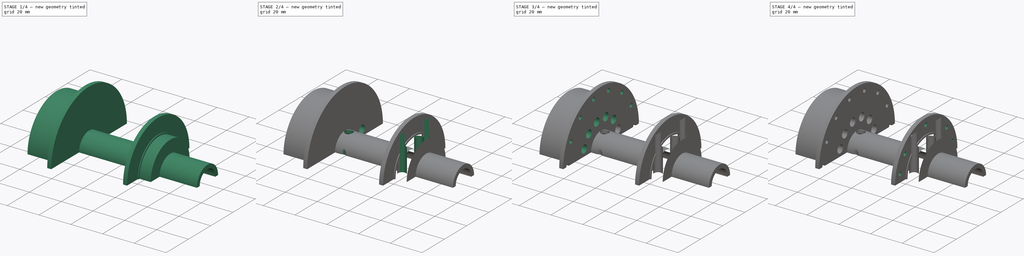
[diagram: build sequence overview — one tinted view per stage of 4, left to right]
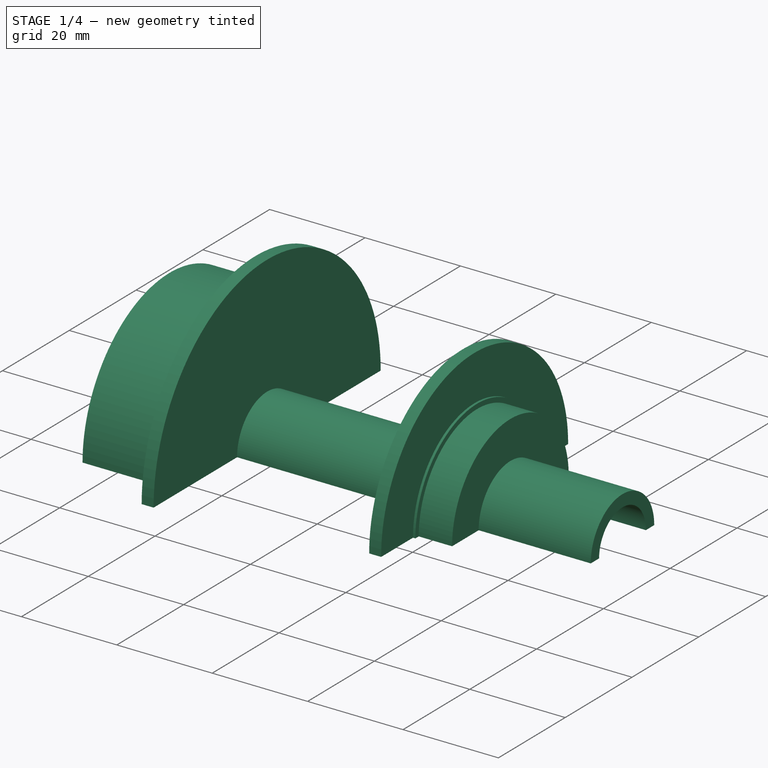
[diagram: stage 1 of 4 — iso view after this stage's code; geometry added in this stage tinted green]
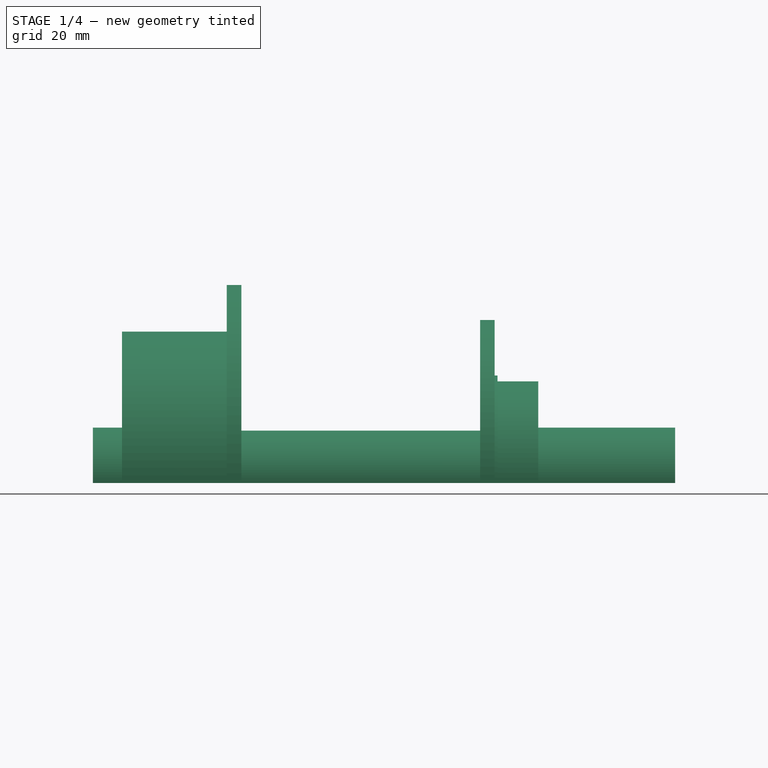
[diagram: stage 1 of 4 — front view after this stage's code; geometry added in this stage tinted green]
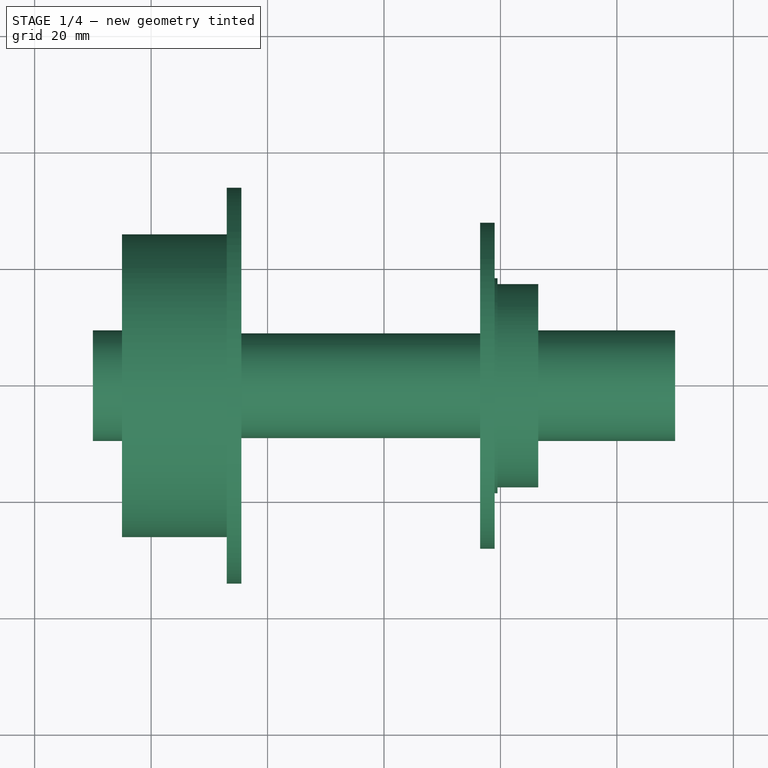
[diagram: stage 1 of 4 — top view after this stage's code; geometry added in this stage tinted green]
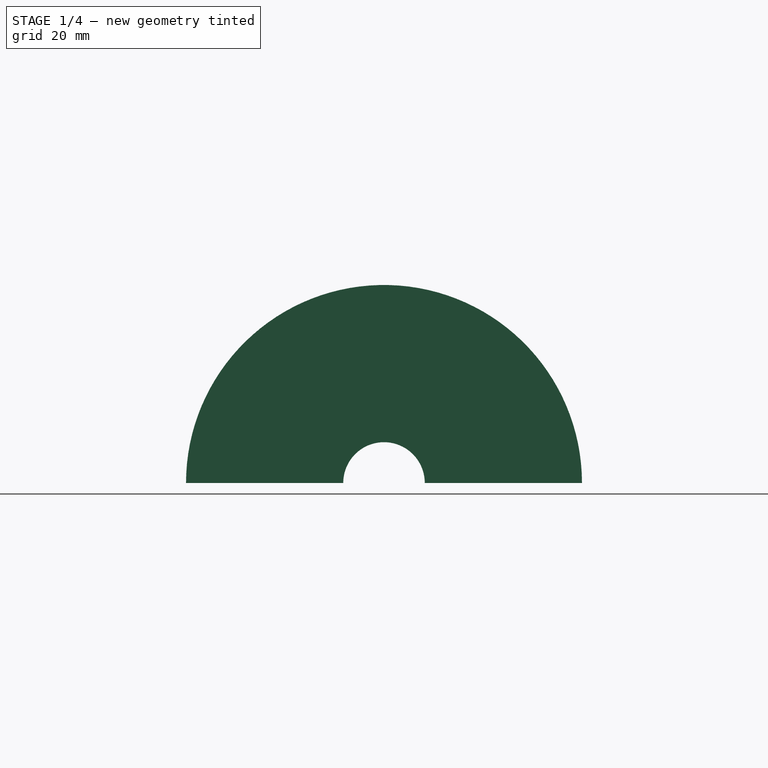
[diagram: stage 1 of 4 — right view after this stage's code; geometry added in this stage tinted green]
FCSTD DOCUMENT  (FreeCAD 0.16R)
Label: 100mmMTB_wChainline50mmtire
License: All rights reserved
LicenseURL: http://en.wikipedia.org/wiki/All_rights_reserved
objects: Sketcher::SketchObject×6, PartDesign::Pocket×4, PartDesign::PolarPattern×4, PartDesign::Revolution×1
note: 20 computed .brp shape members not serialized (recipe doc carries the construction recipe); baked Part::Feature solids carry a one-line shape summary decoded from their .brp

FEATURE [Sketcher::SketchObject] Sketch
  sketch-geometry (79):
    g0: LineSegment StartX=26.5 StartY=9.5 StartZ=0 EndX=26.5 EndY=17.46 EndZ=0
    g1: LineSegment StartX=26.5 StartY=17.46 StartZ=0 EndX=19.5 EndY=17.46 EndZ=0
    g2: LineSegment StartX=19.5 StartY=18.46 StartZ=0 EndX=19 EndY=18.46 EndZ=0
    g3: LineSegment StartX=19 StartY=18.46 StartZ=0 EndX=19 EndY=28 EndZ=0
    g4: LineSegment StartX=19 StartY=28 StartZ=0 EndX=16.5 EndY=28 EndZ=0
    g5: LineSegment StartX=16.5 StartY=28 StartZ=0 EndX=16.5 EndY=9 EndZ=0
    g6: LineSegment StartX=16.5 StartY=9 StartZ=0 EndX=-24.5 EndY=9 EndZ=0
    g7: LineSegment StartX=-24.5 StartY=9 StartZ=0 EndX=-24.5 EndY=34 EndZ=0
    g8: LineSegment StartX=-24.5 StartY=34 StartZ=0 EndX=-27 EndY=34 EndZ=0
    g9: LineSegment StartX=-27 StartY=34 StartZ=0 EndX=-27 EndY=26 EndZ=0
    g10: LineSegment StartX=-45 StartY=26 StartZ=0 EndX=-45 EndY=9.5 EndZ=0
    g11: LineSegment StartX=19.5 StartY=18.46 StartZ=0 EndX=19.5 EndY=17.46 EndZ=0
    g12: LineSegment StartX=-45 StartY=26 StartZ=0 EndX=-27 EndY=26 EndZ=0
    g13: LineSegment [constr] StartX=22 StartY=55 StartZ=0 EndX=22 EndY=0 EndZ=0
    g14: LineSegment [constr] StartX=27.5 StartY=45 StartZ=0 EndX=27.5 EndY=20 EndZ=0
    g15: LineSegment [constr] StartX=33 StartY=33 StartZ=0 EndX=33 EndY=20 EndZ=0
    g16: LineSegment [constr] StartX=38.5 StartY=28 StartZ=0 EndX=38.5 EndY=20 EndZ=0
    g17: LineSegment [constr] StartX=44 StartY=22.5 StartZ=0 EndX=44 EndY=9.5 EndZ=0
    g18: LineSegment StartX=-50 StartY=7 StartZ=0 EndX=-50 EndY=9.5 EndZ=0
    g19: LineSegment [constr] StartX=-46.6 StartY=60 StartZ=0 EndX=-45 EndY=60 EndZ=0
    g20: LineSegment [constr] StartX=-45 StartY=60 StartZ=0 EndX=-45 EndY=20 EndZ=0
    g21: LineSegment [constr] StartX=-45 StartY=20 StartZ=0 EndX=-46.6 EndY=20 EndZ=0
    g22: LineSegment [constr] StartX=-46.6 StartY=20 StartZ=0 EndX=-46.6 EndY=60 EndZ=0
    g23: LineSegment [constr] StartX=0 StartY=0 StartZ=0 EndX=0 EndY=193 EndZ=0
    g24: LineSegment [constr] StartX=-27 StartY=34 StartZ=0 EndX=0 EndY=193 EndZ=0
    g25: LineSegment [constr] StartX=19 StartY=28 StartZ=0 EndX=0 EndY=193 EndZ=0
    g26: LineSegment StartX=26.5 StartY=9.5 StartZ=0 EndX=50 EndY=9.5 EndZ=0
    g27: LineSegment StartX=50 StartY=9.5 StartZ=0 EndX=50 EndY=7 EndZ=0
    g28: LineSegment StartX=-50 StartY=7 StartZ=0 EndX=50 EndY=7 EndZ=0
    g29: LineSegment StartX=-45 StartY=9.5 StartZ=0 EndX=-50 EndY=9.5 EndZ=0
    g30: Circle [constr] CenterX=0 CenterY=229 CenterZ=0 NormalX=0 NormalY=0 NormalZ=1 Radius=25
    g31: LineSegment [constr] StartX=-30 StartY=331 StartZ=0 EndX=30 EndY=331 EndZ=0
    g32: LineSegment [constr] StartX=30 StartY=299 StartZ=0 EndX=-30 EndY=299 EndZ=0
    g33: LineSegment [constr] StartX=-30 StartY=299 StartZ=0 EndX=-30 EndY=331 EndZ=0
    g34: LineSegment [constr] StartX=36 StartY=379 StartZ=0 EndX=33 EndY=379 EndZ=0
    g35: LineSegment [constr] StartX=33 StartY=379 StartZ=0 EndX=33 EndY=251 EndZ=0
    g36: LineSegment [constr] StartX=33 StartY=251 StartZ=0 EndX=36 EndY=251 EndZ=0
    g37: LineSegment [constr] StartX=30 StartY=331 StartZ=0 EndX=30 EndY=315 EndZ=0
    g38: LineSegment [constr] StartX=30 StartY=315 StartZ=0 EndX=30 EndY=299 EndZ=0
    g39: LineSegment [constr] StartX=36 StartY=379 StartZ=0 EndX=36 EndY=315 EndZ=0
    g40: LineSegment [constr] StartX=36 StartY=315 StartZ=0 EndX=36 EndY=251 EndZ=0
    g41: LineSegment [constr] StartX=30 StartY=315 StartZ=0 EndX=110 EndY=315 EndZ=0
    g42: LineSegment [constr] StartX=-45 StartY=60 StartZ=0 EndX=-45 EndY=42 EndZ=0
    g43: LineSegment [constr] StartX=-45 StartY=60 StartZ=0 EndX=-29 EndY=60 EndZ=0
    g44: LineSegment [constr] StartX=-29 StartY=60 StartZ=0 EndX=-29 EndY=42 EndZ=0
    g45: LineSegment [constr] StartX=-29 StartY=42 StartZ=0 EndX=-45 EndY=42 EndZ=0
    g46: LineSegment [constr] StartX=-25 StartY=254 StartZ=0 EndX=25 EndY=254 EndZ=0
    g47: LineSegment [constr] StartX=22 StartY=0 StartZ=0 EndX=36 EndY=315 EndZ=0
    g48: LineSegment [constr] StartX=29.1959 StartY=240.735 StartZ=0 EndX=27.738 EndY=207.933 EndZ=0
    g49: LineSegment [constr] StartX=34.5926 StartY=204.506 StartZ=0 EndX=33.1835 EndY=172.8 EndZ=0
    g50: LineSegment [constr] StartX=36 StartY=315 StartZ=0 EndX=36 EndY=-60.2245 EndZ=0
    g51: Circle [constr] CenterX=0 CenterY=229 CenterZ=0 NormalX=0 NormalY=0 NormalZ=1 Radius=31.75
    g52: Circle [constr] CenterX=0 CenterY=229 CenterZ=0 NormalX=0 NormalY=0 NormalZ=1 Radius=29.3
    g53: LineSegment [constr] StartX=-50 StartY=60.1819 StartZ=0 EndX=-53.2 EndY=60.1819 EndZ=0
    g54: LineSegment [constr] StartX=-53.2 StartY=60.1819 StartZ=0 EndX=-53.2 EndY=0.090679 EndZ=0
    g55: LineSegment [constr] StartX=-53.2 StartY=0.090679 StartZ=0 EndX=-50 EndY=0.090679 EndZ=0
    g56: LineSegment [constr] StartX=-50 StartY=0.090679 StartZ=0 EndX=-50 EndY=60.1819 EndZ=0
    g57: LineSegment [constr] StartX=-28.5943 StartY=215.201 StartZ=0 EndX=-50.0989 EndY=76.3177 EndZ=0
    g58: LineSegment [constr] StartX=-20.4484 StartY=202.457 StartZ=0 EndX=-39.927 EndY=76.6585 EndZ=0
    g59: LineSegment [constr] StartX=20.3595 StartY=203.492 StartZ=0 EndX=46.7509 EndY=48.3487 EndZ=0
    g60: LineSegment [constr] StartX=29.1431 StartY=211.487 StartZ=0 EndX=56.1775 EndY=52.564 EndZ=0
    g61: LineSegment [constr] StartX=50 StartY=54.306 StartZ=0 EndX=53.2 EndY=54.306 EndZ=0
    g62: LineSegment [constr] StartX=53.2 StartY=54.306 StartZ=0 EndX=53.2 EndY=-0.259602 EndZ=0
    g63: LineSegment [constr] StartX=53.2 StartY=-0.259602 StartZ=0 EndX=50 EndY=-0.259602 EndZ=0
    g64: LineSegment [constr] StartX=50 StartY=-0.259602 StartZ=0 EndX=50 EndY=54.306 EndZ=0
    g65: LineSegment [constr] StartX=42 StartY=315 StartZ=0 EndX=42 EndY=185 EndZ=0
    g66: LineSegment [constr] StartX=-44 StartY=315 StartZ=0 EndX=-44 EndY=185 EndZ=0
    g67: LineSegment [constr] StartX=-34.123 StartY=94.0816 StartZ=0 EndX=-54.6081 EndY=58.6005 EndZ=0
    g68: LineSegment [constr] StartX=-30.6949 StartY=93.6193 StartZ=0 EndX=-50 EndY=60.1819 EndZ=0
    g69: Circle [constr] CenterX=0 CenterY=206.598 CenterZ=0 NormalX=0 NormalY=0 NormalZ=1 Radius=13.75
    g70: Circle [constr] CenterX=-59.25 CenterY=60.5 CenterZ=0 NormalX=0 NormalY=0 NormalZ=1 Radius=2.75
    g71: Circle [constr] CenterX=-59.25 CenterY=26.5 CenterZ=0 NormalX=0 NormalY=0 NormalZ=1 Radius=2.75
    g72: LineSegment [constr] StartX=-63.25 StartY=66.4736 StartZ=0 EndX=-53.25 EndY=66.4736 EndZ=0
    g73: LineSegment [constr] StartX=-53.25 StartY=66.4736 StartZ=0 EndX=-53.25 EndY=20.9721 EndZ=0
    g74: LineSegment [constr] StartX=-53.25 StartY=20.9721 StartZ=0 EndX=-63.25 EndY=20.9721 EndZ=0
    g75: LineSegment [constr] StartX=-63.25 StartY=20.9721 StartZ=0 EndX=-63.25 EndY=66.4736 EndZ=0
    g76: Circle [constr] CenterX=-57.25 CenterY=60.5 CenterZ=0 NormalX=0 NormalY=0 NormalZ=1 Radius=2.75
    g77: Circle [constr] CenterX=-57.25 CenterY=26.5 CenterZ=0 NormalX=0 NormalY=0 NormalZ=1 Radius=2.75
    g78: LineSegment [constr] StartX=-26.8702 StartY=40.7378 StartZ=0 EndX=-28.1531 EndY=33.1829 EndZ=0
  constraints (221):
    c: Coincident(g2,g3)
    c: Vertical(g3)
    c: Coincident(g3,g4)
    c: Horizontal(g4)
    c: Coincident(g4,g5)
    c: Vertical(g5)
    c: Horizontal(g6)
    c: Vertical(g7)
    c: Coincident(g7,g8)
    c: Horizontal(g1)
    c: Horizontal(g8)
    c: DistanceY(g-1,g0) = 9.5
    c: Vertical(g0)
    c: DistanceX(g2,g2) = 0.5
    c: Horizontal(g2)
    c: DistanceY(g-1,g1) = 17.46
    c: DistanceX(g4,g4) = 2.5
    c: DistanceX(g1,g1) = 7
    c: DistanceY(g1,g2) = 1
    c: DistanceY(g-1,g6) = 9
    c: DistanceX(g8,g8) = 2.5
    c: DistanceY(g-1,g4) = 28
    c: Coincident(g8,g9)
    c: Vertical(g10)
    c: Vertical(g9)
    c: DistanceY(g8) = 34
    c: DistanceY(g10) = 26
    c: DistanceX(g10,g9) = 18
    c: Vertical(g11)
    c: Coincident(g11,g2)
    c: Coincident(g11,g1)
    c: Horizontal(g12)
    c: Coincident(g12,g10)
    c: Coincident(g12,g9)
    c: Vertical(g13)
    c: Vertical(g14)
    c: Vertical(g15)
    c: Vertical(g17)
    c: Vertical(g16)
    c: DistanceX(g13,g14) = 5.5
    c: DistanceX(g14,g15) = 5.5
    c: DistanceX(g15,g16) = 5.5
    c: DistanceX(g16,g17) = 5.5
    c: DistanceY(g13) = 55
    c: DistanceX(g2,g13) = 3
    c: Vertical(g18)
    c: Coincident(g19,g20)
    c: Coincident(g20,g21)
    c: Coincident(g21,g22)
    c: Coincident(g22,g19)
    c: Horizontal(g19)
    c: Horizontal(g21)
    c: Vertical(g20)
    c: Vertical(g22)
    c: DistanceX(g19,g19) = 1.6
    c: PointOnObject(g23,g-1)
    c: Vertical(g23)
    c: Distance(g23) = 193
    c: Coincident(g24,g23)
    c: Coincident(g24,g25)
    c: Coincident(g25,g3)
    c: Coincident(g24,g8)
    c: DistanceY(g16) = 20
    c: DistanceY(g15) = 20
    c: DistanceY(g14) = 20
    c: Distance(g14) = 25
    c: Distance(g16) = 8
    c: Distance(g15) = 13
    c: DistanceY(g17,g17) = 13
    c: Coincident(g1,g0)
    c: Coincident(g28,g27)
    c: Horizontal(g28)
    c: Vertical(g27)
    c: Distance(g26,g17) = 6
    c: Coincident(g27,g26)
    c: PointOnObject(g17,g26)
    c: Horizontal(g26)
    c: DistanceY(g26) = 9.5
    c: DistanceY(g27) = 7
    c: DistanceX(g18,g27) = 100
    c: DistanceX(g18,g23) = 50
    c: Coincident(g29,g10)
    c: Coincident(g29,g18)
    c: DistanceY(g20) = 20
    c: Coincident(g18,g28)
    c: Horizontal(g29)
    c: DistanceY(g10) = 9.5
    c: PointOnObject(g20,g10)
    c: DistanceX(g29,g29) = 5
    c: Coincident(g26,g0)
    c: Coincident(g-1,g23)
    c: Radius(g30) = 25
    c: PointOnObject(g30,g-2)
    c: Coincident(g32,g33)
    c: Coincident(g33,g31)
    c: Horizontal(g31)
    c: Horizontal(g32)
    c: Vertical(g33)
    c: Symmetric(g32,g32,g-2)
    c: Distance(g31) = 60
    c: Coincident(g34,g35)
    c: Coincident(g35,g36)
    c: Horizontal(g34)
    c: Horizontal(g36)
    c: Vertical(g35)
    c: Distance(g36) = 3
    c: Distance(g35) = 128
    c: Vertical(g37)
    c: Coincident(g38,g37)
    c: Coincident(g37,g31)
    c: Coincident(g38,g32)
    c: Symmetric(g31,g32,g37)
    c: Vertical(g39)
    c: Coincident(g40,g36)
    c: Coincident(g39,g34)
    c: Vertical(g40)
    c: Coincident(g40,g39)
    c: Horizontal(g41)
    c: Coincident(g41,g37)
    c: Distance(g41) = 80
    c: PointOnObject(g39,g41)
    c: DistanceX(g37,g39) = 6
    c: Vertical(g42)
    c: Horizontal(g43)
    c: Coincident(g43,g44)
    c: Coincident(g44,g45)
    c: Coincident(g45,g42)
    c: Horizontal(g45)
    c: Vertical(g44)
    c: Distance(g45) = 16
    c: Coincident(g43,g42)
    c: Distance(g44) = 18
    c: PointOnObject(g42,g20)
    c: Coincident(g42,g19)
    c: DistanceY(g19) = 60
    c: DistanceY(g37) = 315
    c: Distance(g33) = 32
    c: Symmetric(g36,g34,g41)
    c: Tangent(g46,g30)
    c: Horizontal(g46)
    c: Symmetric(g46,g46,g-2)
    c: DistanceY(g-1,g46) = 254
    c: PointOnObject(g13,g-1)
    c: Coincident(g47,g13)
    c: Coincident(g47,g39)
    c: Distance(g46) = 50
    c: Parallel(g48,g47)
    c: Parallel(g49,g47)
    c: Distance(g48,g47) = 3.5
    c: Distance(g49,g47) = 3.5
    c: Coincident(g50,g39)
    c: Vertical(g50)
    c: Radius(g51) = 31.75
    c: Coincident(g51,g30)
    c: Coincident(g52,g30)
    c: Radius(g52) = 29.3
    c: Coincident(g53,g54)
    c: Coincident(g54,g55)
    c: Coincident(g55,g56)
    c: Coincident(g56,g53)
    c: Horizontal(g53)
    c: Horizontal(g55)
    c: Vertical(g54)
    c: Vertical(g56)
    c: Distance(g55) = 3.2
    c: PointOnObject(g18,g56)
    c: PointOnObject(g57,g51)
    c: Distance(g58,g57) = 10
    c: Parallel(g58,g57)
    c: Distance(g60,g59) = 10
    c: Parallel(g60,g59)
    c: Coincident(g61,g62)
    c: Coincident(g62,g63)
    c: Coincident(g63,g64)
    c: Coincident(g64,g61)
    c: Horizontal(g61)
    c: Horizontal(g63)
    c: Vertical(g62)
    c: Vertical(g64)
    c: Distance(g61) = 3.2
    c: PointOnObject(g26,g64)
    c: Vertical(g65)
    c: Distance(g65) = 130
    c: PointOnObject(g65,g41)
    c: Distance(g65,g39) = 6
    c: Vertical(g66)
    c: Distance(g66) = 130
    c: PointOnObject(g66,g41)
    c: Distance(g66,g33) = 14
    c: Distance(g67,g68) = 3.2
    c: Parallel(g68,g67)
    c: Coincident(g68,g53)
    c: Angle(g67) = -2.0944
    c: Radius(g69) = 13.75
    c: PointOnObject(g69,g23)
    c: Radius(g70) = 2.75
    c: Equal(g70,g71)
    c: Distance(g70,g71) = 34
    c: Coincident(g72,g73)
    c: Coincident(g73,g74)
    c: Coincident(g74,g75)
    c: Coincident(g75,g72)
    c: Horizontal(g72)
    c: Horizontal(g74)
    c: Vertical(g73)
    c: Vertical(g75)
    c: Distance(g74) = 10
    c: Distance(g71,g75) = 4
    c: Distance(g70,g75) = 4
    c: DistanceY(g-1,g71) = 26.5
    c: Radius(g77) = 2.75
    c: Equal(g77,g76)
    c: DistanceY(g77) = 26.5
    c: Distance(g76,g77) = 34
    c: Distance(g76,g73) = 4
    c: Distance(g77,g73) = 4
    c: Distance(g77,g20) = 12.25
    c: Parallel(g78,g24)
    c: Distance(g78,g24) = 1
    c: Coincident(g6,g7)
    c: Coincident(g5,g6)
FEATURE [PartDesign::Revolution] Revolution
  Angle = 180
  Axis = (1,0,0)
  Base = (0,0,0)
  ReferenceAxis = -> Sketch [H_Axis]
  Sketch = -> Sketch
FEATURE [Sketcher::SketchObject] Sketch001
  Placement = pos=(0,0,0) rot=(1,0,0;3.14159rad)
  Support = -> Revolution [Face19]
  sketch-geometry (1):
    g0: Circle CenterX=0 CenterY=22 CenterZ=0 NormalX=0 NormalY=0 NormalZ=1 Radius=2.5
  constraints (3):
    c: Radius(g0) = 2.5
    c: PointOnObject(g0,g-2)
    c: DistanceY(g0) = 22
FEATURE [PartDesign::Pocket] Pocket
  Length = 23
  Sketch = -> Sketch001
  Type = 0
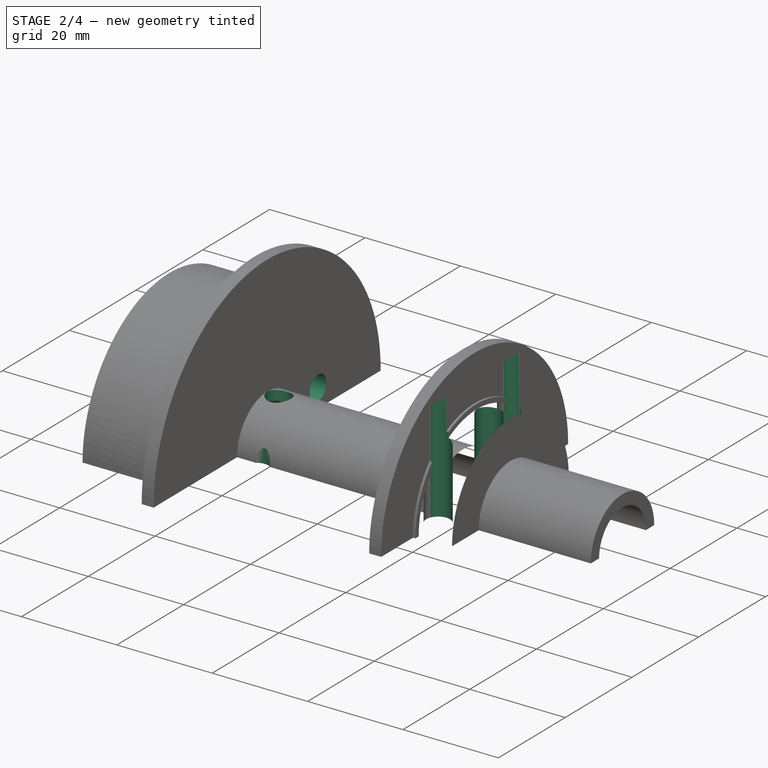
[diagram: stage 2 of 4 — iso view after this stage's code; geometry added in this stage tinted green]
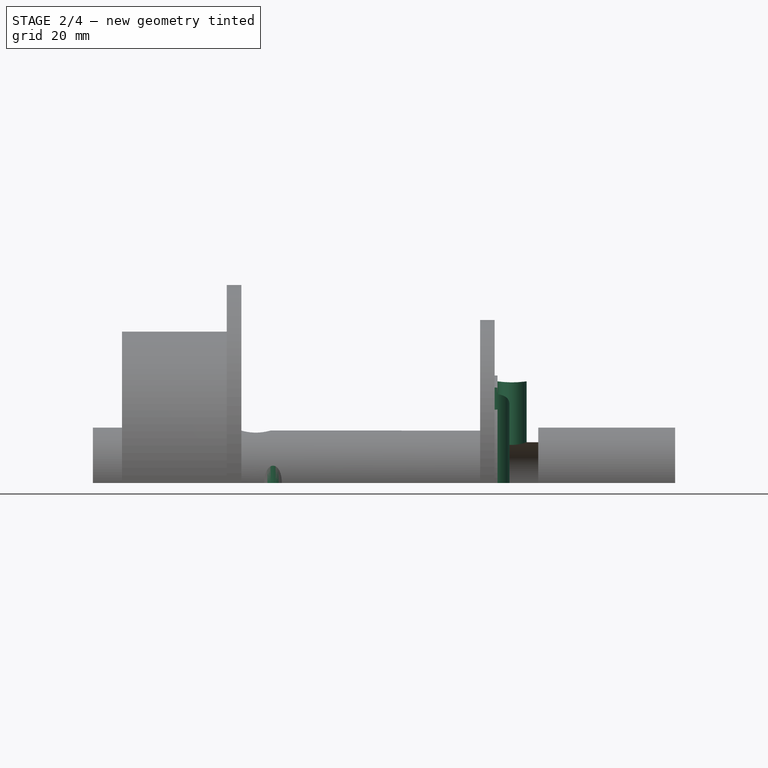
[diagram: stage 2 of 4 — front view after this stage's code; geometry added in this stage tinted green]
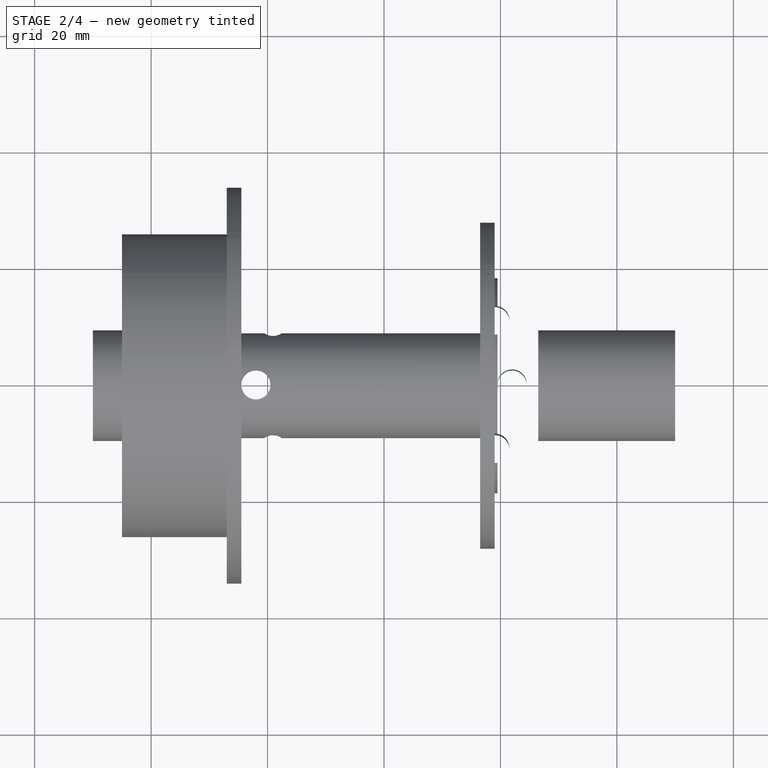
[diagram: stage 2 of 4 — top view after this stage's code; geometry added in this stage tinted green]
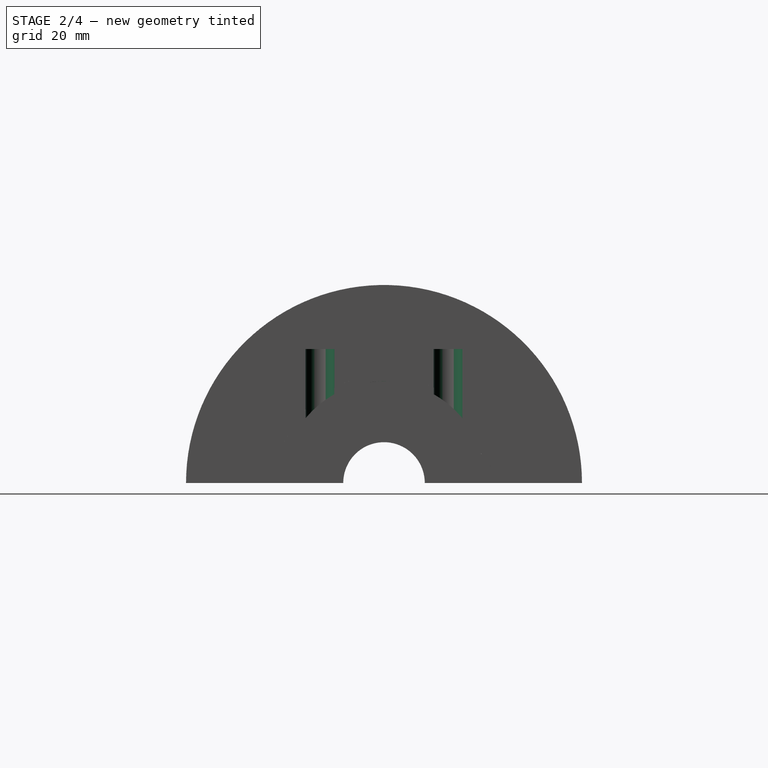
[diagram: stage 2 of 4 — right view after this stage's code; geometry added in this stage tinted green]
FEATURE [PartDesign::PolarPattern] PolarPattern
  Angle = 360
  Axis = -> Sketch001 [N_Axis]
  Occurrences = 12
  Originals = -> [Pocket]
FEATURE [Sketcher::SketchObject] Sketch002
  Placement = pos=(19,0,0) rot=(0.57735,0.57735,0.57735;2.0944rad)
  Support = -> PolarPattern [Face23]
FEATURE [Sketcher::SketchObject] Sketch003
  Placement = pos=(-45,0,0) rot=(0.57735,-0.57735,-0.57735;2.0944rad)
  Support = -> PolarPattern [Face11]
  sketch-geometry (1):
    g0: Circle CenterX=-15.2521 CenterY=3.88211 CenterZ=0 NormalX=0 NormalY=0 NormalZ=1 Radius=2.5
  constraints (3):
    c: Radius(g0) = 2.5
    c: DistanceY(g0) = 3.88211
    c: DistanceX(g0) = -15.2521
FEATURE [PartDesign::Pocket] Pocket001
  Length = 29
  Sketch = -> Sketch003
  Type = 0
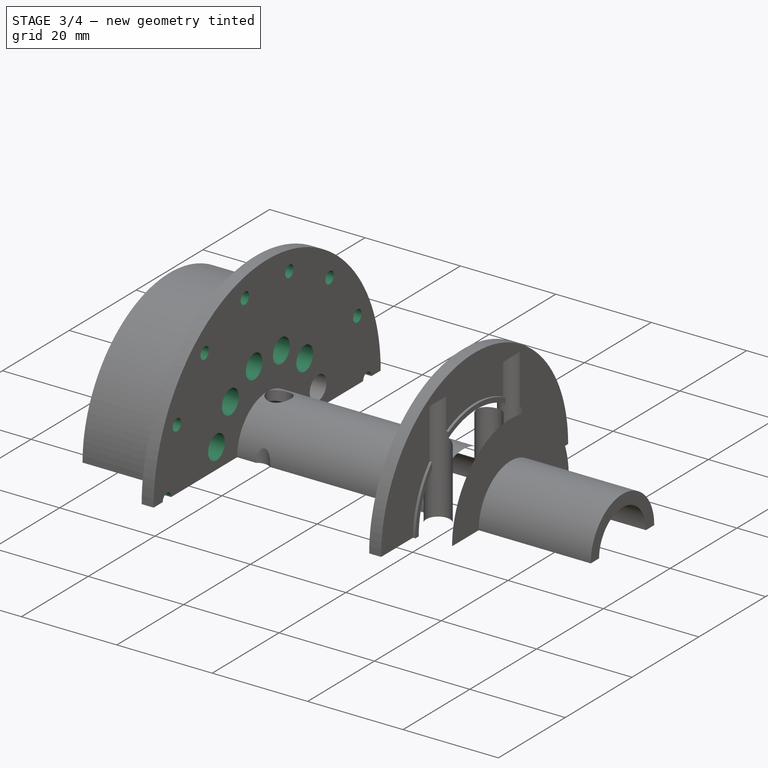
[diagram: stage 3 of 4 — iso view after this stage's code; geometry added in this stage tinted green]
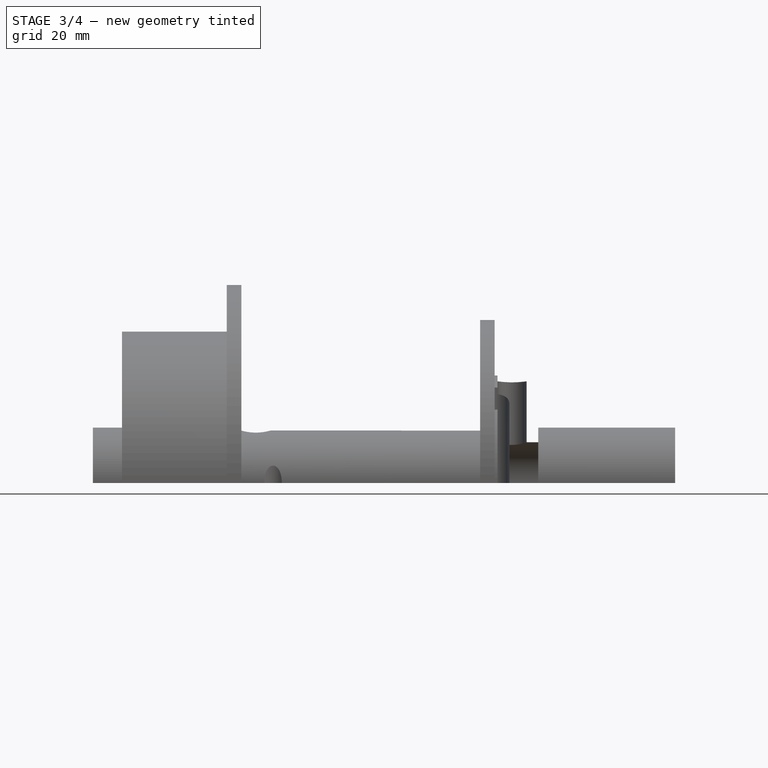
[diagram: stage 3 of 4 — front view after this stage's code; geometry added in this stage tinted green]
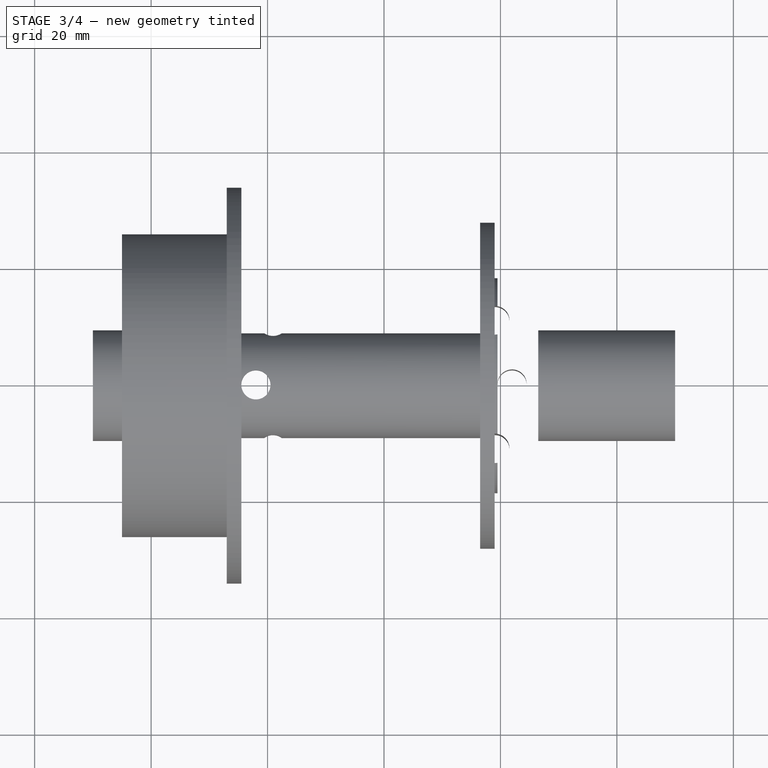
[diagram: stage 3 of 4 — top view after this stage's code; geometry added in this stage tinted green]
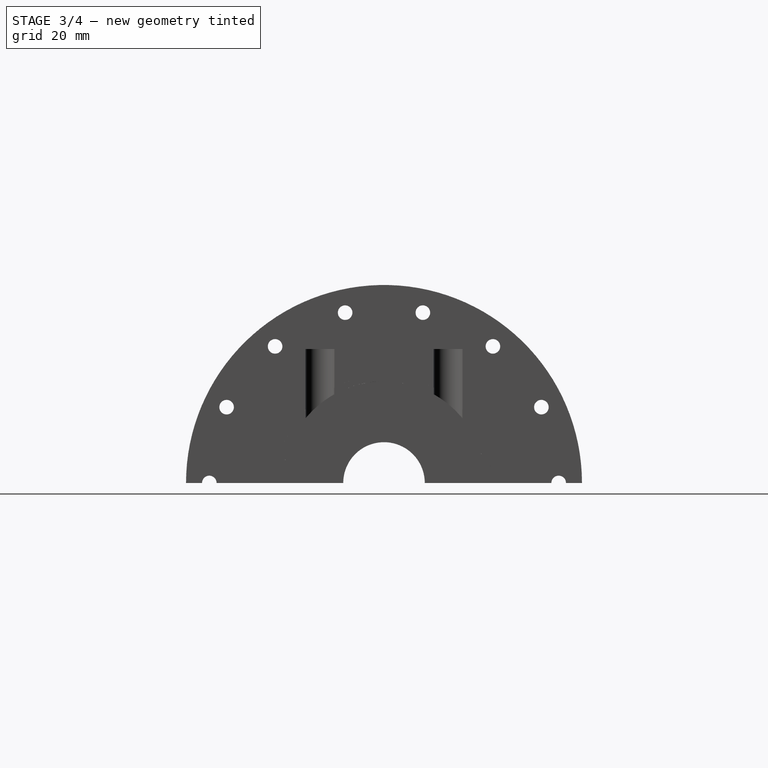
[diagram: stage 3 of 4 — right view after this stage's code; geometry added in this stage tinted green]
FEATURE [PartDesign::PolarPattern] PolarPattern001
  Angle = 360
  Axis = -> Sketch003 [N_Axis]
  Occurrences = 12
  Originals = -> [Pocket001]
FEATURE [Sketcher::SketchObject] Sketch004
  Placement = pos=(-27,0,0) rot=(0.57735,-0.57735,-0.57735;2.0944rad)
  Support = -> PolarPattern001 [Face42]
  sketch-geometry (1):
    g0: Circle CenterX=-30 CenterY=0 CenterZ=0 NormalX=0 NormalY=0 NormalZ=1 Radius=1.25
  constraints (3):
    c: Radius(g0) = 1.25
    c: PointOnObject(g0,g-1)
    c: DistanceX(g0) = -30
FEATURE [PartDesign::Pocket] Pocket002
  Length = 5
  Sketch = -> Sketch004
  Type = 1
FEATURE [PartDesign::PolarPattern] PolarPattern002
  Angle = 360
  Axis = -> Sketch004 [N_Axis]
  Occurrences = 14
  Originals = -> [Pocket002]
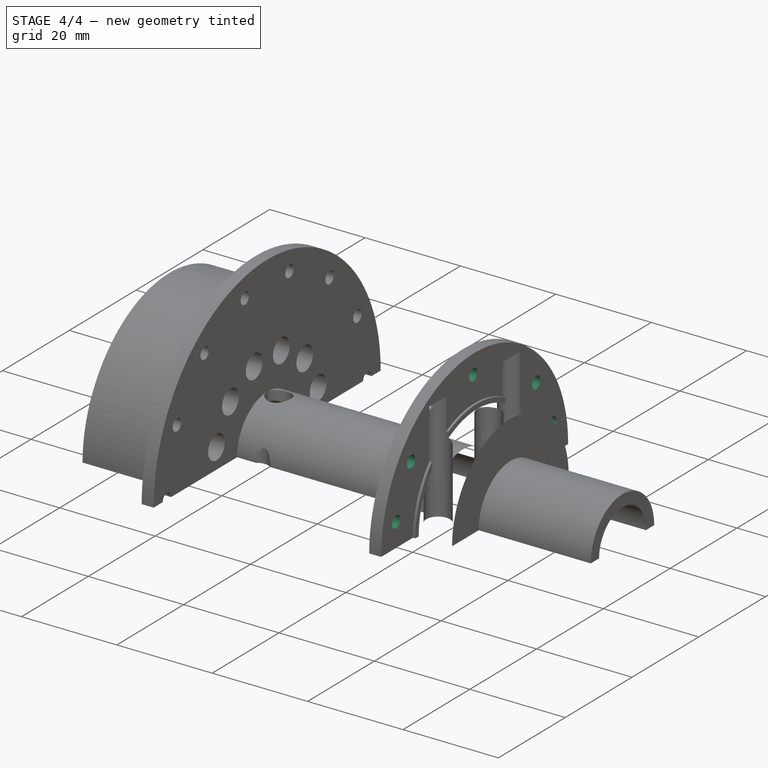
[diagram: stage 4 of 4 — iso view after this stage's code; geometry added in this stage tinted green]
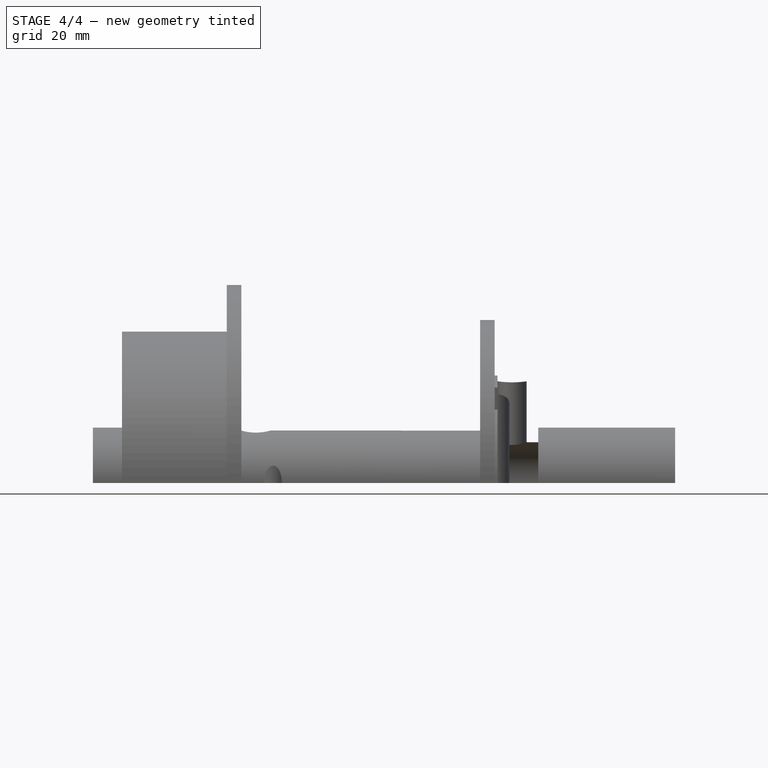
[diagram: stage 4 of 4 — front view after this stage's code; geometry added in this stage tinted green]
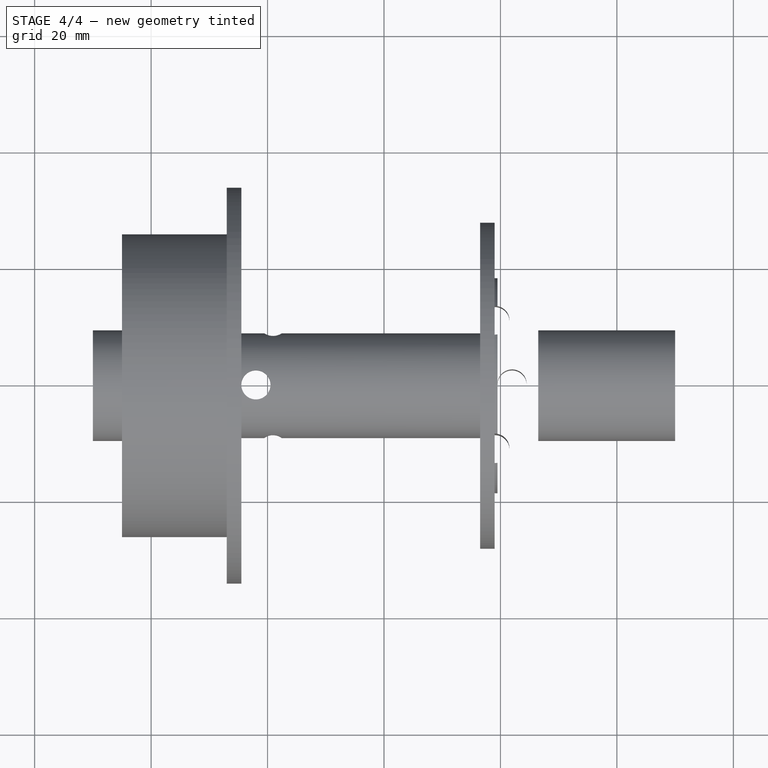
[diagram: stage 4 of 4 — top view after this stage's code; geometry added in this stage tinted green]
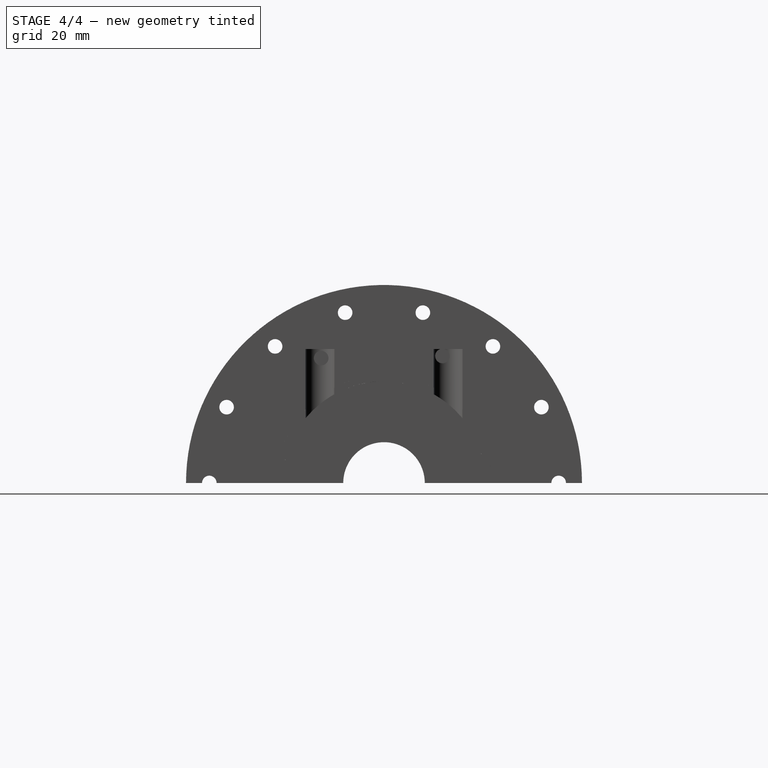
[diagram: stage 4 of 4 — right view after this stage's code; geometry added in this stage tinted green]
FEATURE [Sketcher::SketchObject] Sketch005
  Placement = pos=(19,0,0) rot=(0.57735,0.57735,0.57735;2.0944rad)
  Support = -> PolarPattern002 [Face23]
  sketch-geometry (2):
    g0: Circle CenterX=23.3015 CenterY=5.74799 CenterZ=0 NormalX=0 NormalY=0 NormalZ=1 Radius=1.25
    g1: LineSegment [constr] StartX=0 StartY=0 StartZ=0 EndX=23.3015 EndY=5.74799 EndZ=0
  constraints (5):
    c: Radius(g0) = 1.25
    c: Angle(g1) = 0.24185
    c: Coincident(g1,g-1)
    c: Coincident(g1,g0)
    c: Distance(g1) = 24
FEATURE [PartDesign::Pocket] Pocket003
  Length = 5
  Sketch = -> Sketch005
  Type = 0
FEATURE [PartDesign::PolarPattern] PolarPattern003
  Angle = 360
  Axis = -> Sketch005 [N_Axis]
  Occurrences = 14
  Originals = -> [Pocket003]
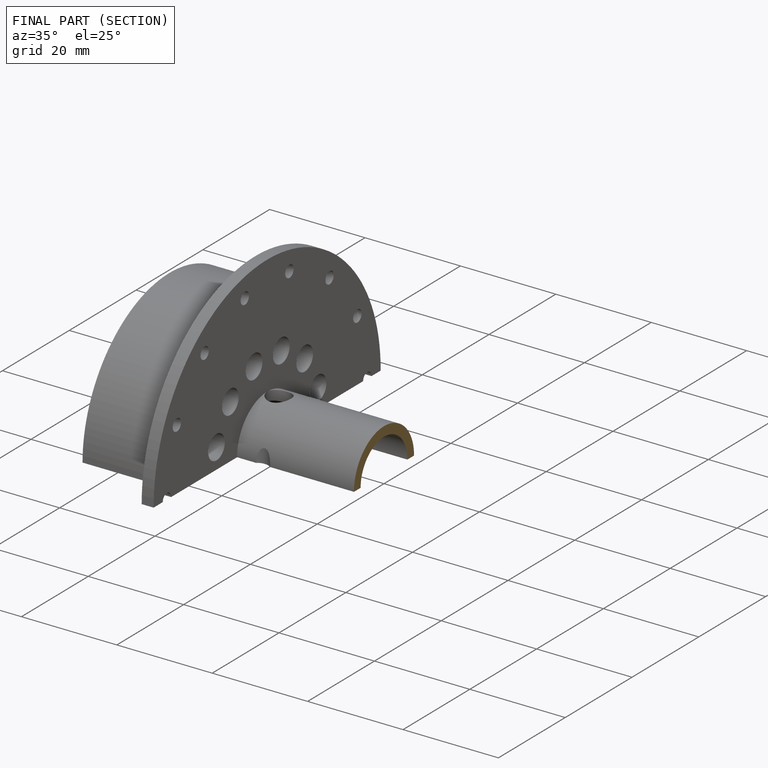
[diagram: finished part — half-section view (interior)]
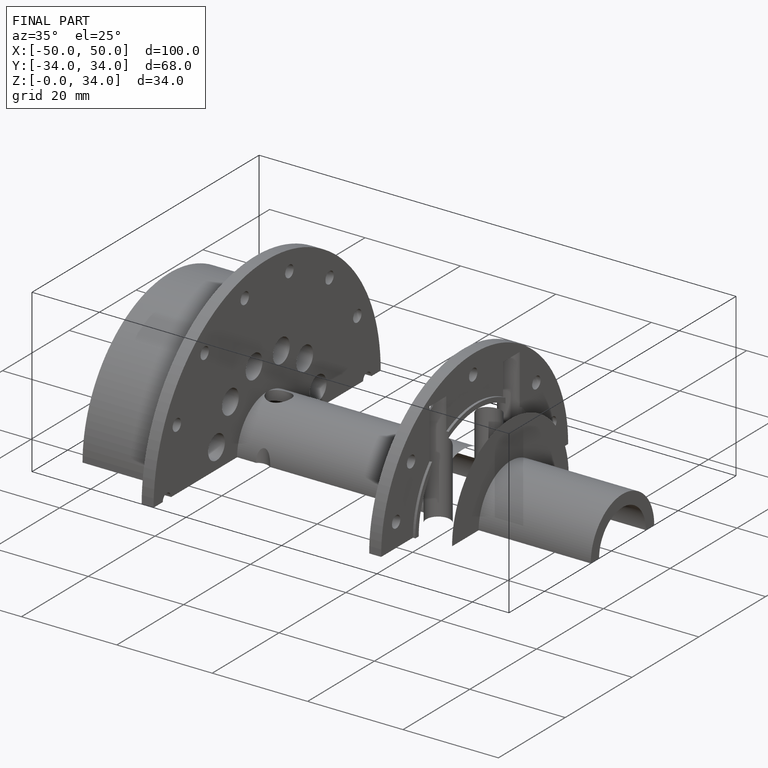
[diagram: finished part — iso view with bounding-box wireframe]
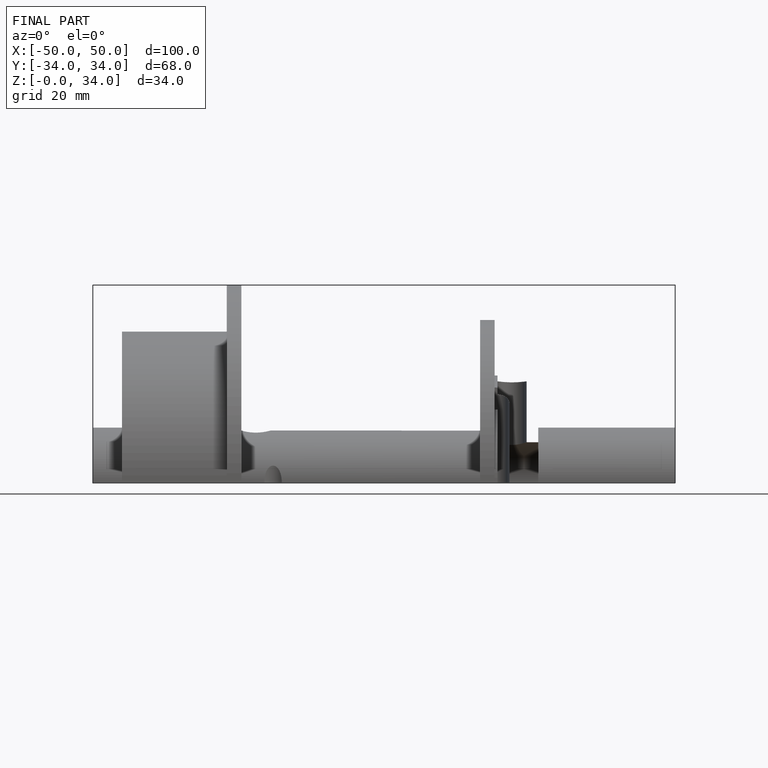
[diagram: finished part — front view with bounding-box wireframe]
